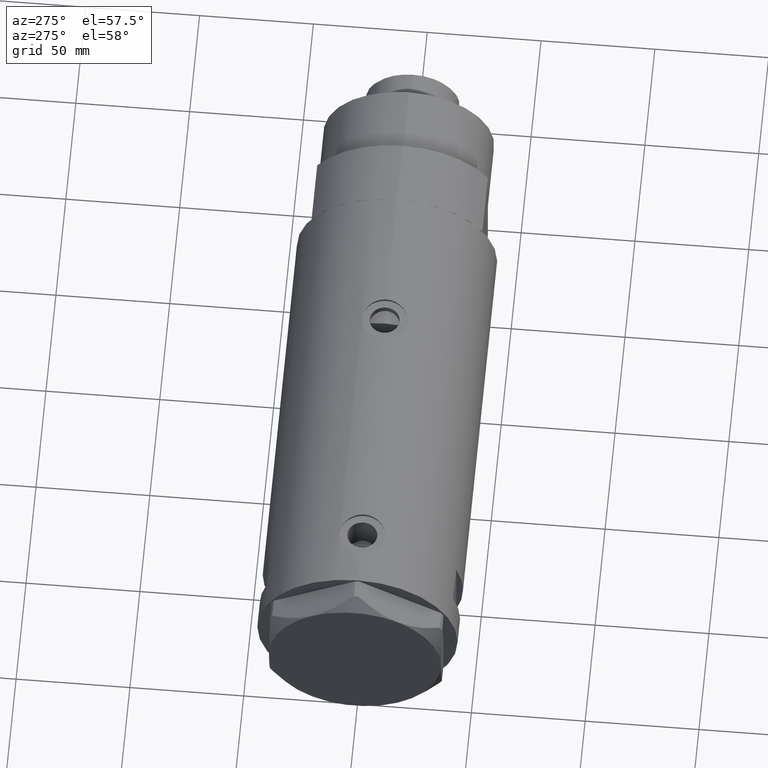
[diagram: clean part render]
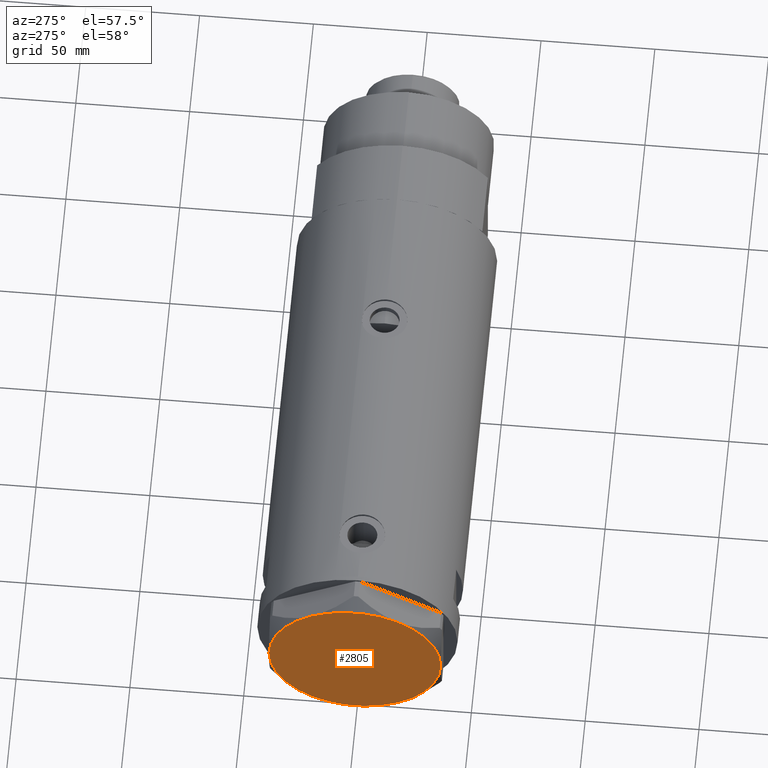
[diagram: same view with one face highlighted and labeled with its STEP entity id]
A machine part, auxiliary view. The second image highlights one B-rep face of the part: STEP entity #2805.
In plain terms, the highlighted planar face has unit normal (-1, -0, 0).
Its self-contained STEP definition (entity closure, byte-faithful):
#295 = EDGE_CURVE ( 'NONE', #3323, #4382, #4717, .T. ) ;
#420 = CIRCLE ( 'NONE', #2450, 37.75000000000000000 ) ;
#476 = CARTESIAN_POINT ( 'NONE',  ( 0.000000000000000000, 0.000000000000000000, 13.00000000000000000 ) ) ;
#644 = CARTESIAN_POINT ( 'NONE',  ( 0.000000000000000000, 0.000000000000000000, 13.00000000000000000 ) ) ;
#731 = CIRCLE ( 'NONE', #2126, 37.75000000000000000 ) ;
#745 = EDGE_LOOP ( 'NONE', ( #2885, #4669, #3259, #4518, #2844, #1941 ) ) ;
#856 = DIRECTION ( 'NONE',  ( 1.000000000000000000, 0.000000000000000000, 0.000000000000000000 ) ) ;
#888 = DIRECTION ( 'NONE',  ( 1.000000000000000000, 0.000000000000000000, 0.000000000000000000 ) ) ;
#903 = DIRECTION ( 'NONE',  ( 0.000000000000000000, 0.000000000000000000, 1.000000000000000000 ) ) ;
#994 = DIRECTION ( 'NONE',  ( 0.000000000000000000, 0.000000000000000000, 1.000000000000000000 ) ) ;
#1025 = DIRECTION ( 'NONE',  ( 1.000000000000000000, 0.000000000000000000, 0.000000000000000000 ) ) ;
#1246 = CARTESIAN_POINT ( 'NONE',  ( 0.000000000000000000, 0.000000000000000000, 13.00000000000000000 ) ) ;
#1342 = AXIS2_PLACEMENT_3D ( 'NONE', #644, #994, #2102 ) ;
#1384 = DIRECTION ( 'NONE',  ( 0.000000000000000000, 0.000000000000000000, 1.000000000000000000 ) ) ;
#1396 = VERTEX_POINT ( 'NONE', #4417 ) ;
#1550 = CARTESIAN_POINT ( 'NONE',  ( 37.75000000000000711, 1.802777518484591547E-14, 13.00000000000000000 ) ) ;
#1688 = DIRECTION ( 'NONE',  ( 1.000000000000000000, 0.000000000000000000, 0.000000000000000000 ) ) ;
#1941 = ORIENTED_EDGE ( 'NONE', *, *, #295, .T. ) ;
#1977 = CARTESIAN_POINT ( 'NONE',  ( -37.75000000000000000, -1.201851678989727067E-14, 13.00000000000000000 ) ) ;
#1991 = EDGE_CURVE ( 'NONE', #3098, #4666, #731, .T. ) ;
#2083 = CARTESIAN_POINT ( 'NONE',  ( 18.87499999999998579, -32.69245899286256218, 13.00000000000000000 ) ) ;
#2102 = DIRECTION ( 'NONE',  ( 1.000000000000000000, 0.000000000000000000, 0.000000000000000000 ) ) ;
#2126 = AXIS2_PLACEMENT_3D ( 'NONE', #4563, #2734, #888 ) ;
#2269 = AXIS2_PLACEMENT_3D ( 'NONE', #476, #903, #2303 ) ;
#2292 = EDGE_CURVE ( 'NONE', #1396, #3098, #420, .T. ) ;
#2303 = DIRECTION ( 'NONE',  ( 1.000000000000000000, 0.000000000000000000, -0.000000000000000000 ) ) ;
#2371 = VERTEX_POINT ( 'NONE', #1550 ) ;
#2450 = AXIS2_PLACEMENT_3D ( 'NONE', #3500, #2702, #856 ) ;
#2474 = EDGE_CURVE ( 'NONE', #4666, #3323, #3548, .T. ) ;
#2702 = DIRECTION ( 'NONE',  ( 0.000000000000000000, 0.000000000000000000, 1.000000000000000000 ) ) ;
#2734 = DIRECTION ( 'NONE',  ( 0.000000000000000000, 0.000000000000000000, 1.000000000000000000 ) ) ;
#2805 = ADVANCED_FACE ( 'NONE', ( #3493 ), #3121, .T. ) ;
#2844 = ORIENTED_EDGE ( 'NONE', *, *, #2474, .T. ) ;
#2868 = EDGE_CURVE ( 'NONE', #2371, #1396, #3693, .T. ) ;
#2875 = DIRECTION ( 'NONE',  ( 1.000000000000000000, 0.000000000000000000, 0.000000000000000000 ) ) ;
#2885 = ORIENTED_EDGE ( 'NONE', *, *, #3542, .T. ) ;
#3098 = VERTEX_POINT ( 'NONE', #4623 ) ;
#3121 = PLANE ( 'NONE',  #2269 ) ;
#3166 = DIRECTION ( 'NONE',  ( 0.000000000000000000, 0.000000000000000000, 1.000000000000000000 ) ) ;
#3259 = ORIENTED_EDGE ( 'NONE', *, *, #2292, .T. ) ;
#3323 = VERTEX_POINT ( 'NONE', #4285 ) ;
#3493 = FACE_OUTER_BOUND ( 'NONE', #745, .T. ) ;
#3500 = CARTESIAN_POINT ( 'NONE',  ( 0.000000000000000000, 0.000000000000000000, 13.00000000000000000 ) ) ;
#3542 = EDGE_CURVE ( 'NONE', #4382, #2371, #4489, .T. ) ;
#3548 = CIRCLE ( 'NONE', #4812, 37.75000000000000000 ) ;
#3693 = CIRCLE ( 'NONE', #4013, 37.75000000000000000 ) ;
#4013 = AXIS2_PLACEMENT_3D ( 'NONE', #4751, #1384, #2875 ) ;
#4255 = AXIS2_PLACEMENT_3D ( 'NONE', #1246, #3166, #1688 ) ;
#4285 = CARTESIAN_POINT ( 'NONE',  ( -18.87499999999999645, -32.69245899286255508, 13.00000000000000000 ) ) ;
#4382 = VERTEX_POINT ( 'NONE', #2083 ) ;
#4394 = DIRECTION ( 'NONE',  ( 0.000000000000000000, 0.000000000000000000, 1.000000000000000000 ) ) ;
#4417 = CARTESIAN_POINT ( 'NONE',  ( 18.87500000000000000, 32.69245899286255508, 13.00000000000000000 ) ) ;
#4489 = CIRCLE ( 'NONE', #4255, 37.75000000000000000 ) ;
#4518 = ORIENTED_EDGE ( 'NONE', *, *, #1991, .T. ) ;
#4563 = CARTESIAN_POINT ( 'NONE',  ( 0.000000000000000000, 0.000000000000000000, 13.00000000000000000 ) ) ;
#4623 = CARTESIAN_POINT ( 'NONE',  ( -18.87499999999999645, 32.69245899286256218, 13.00000000000000000 ) ) ;
#4666 = VERTEX_POINT ( 'NONE', #1977 ) ;
#4669 = ORIENTED_EDGE ( 'NONE', *, *, #2868, .T. ) ;
#4717 = CIRCLE ( 'NONE', #1342, 37.75000000000000000 ) ;
#4751 = CARTESIAN_POINT ( 'NONE',  ( 0.000000000000000000, 0.000000000000000000, 13.00000000000000000 ) ) ;
#4760 = CARTESIAN_POINT ( 'NONE',  ( 0.000000000000000000, 0.000000000000000000, 13.00000000000000000 ) ) ;
#4812 = AXIS2_PLACEMENT_3D ( 'NONE', #4760, #4394, #1025 ) ;